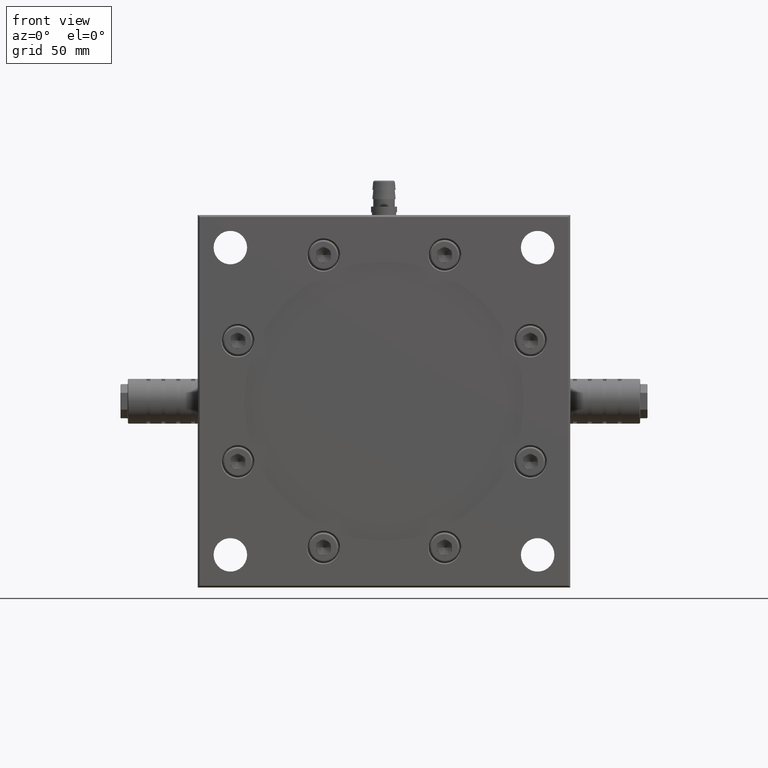
[diagram: clean part render]
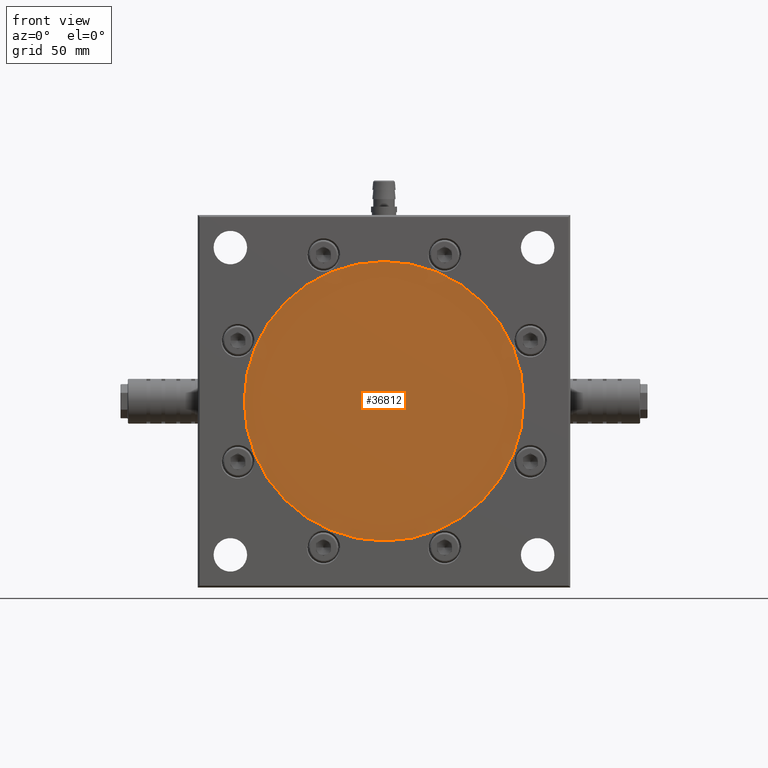
[diagram: same view with one face highlighted and labeled with its STEP entity id]
A machine part, front view. The second image highlights one B-rep face of the part: STEP entity #36812.
In plain terms, the highlighted planar face has unit normal (0, -1, 0).
Its self-contained STEP definition (entity closure, byte-faithful):
#2057 = DIRECTION ( 'NONE',  ( 2.300880297921579900E-017, -1.000000000000000000, 0.0000000000000000000 ) ) ;
#3443 = DIRECTION ( 'NONE',  ( 2.300880297921579900E-017, -1.000000000000000000, 0.0000000000000000000 ) ) ;
#11341 = PLANE ( 'NONE',  #33735 ) ;
#12151 = DIRECTION ( 'NONE',  ( -1.000000000000000000, 0.0000000000000000000, 6.401752586476379100E-022 ) ) ;
#12186 = CARTESIAN_POINT ( 'NONE',  ( -2.300880297921580200E-017, 1.000000000000000000, 0.0000000000000000000 ) ) ;
#12259 = DIRECTION ( 'NONE',  ( -1.000000000000000000, 0.0000000000000000000, 6.401752586476379100E-022 ) ) ;
#14880 = FACE_OUTER_BOUND ( 'NONE', #43205, .T. ) ;
#24697 = AXIS2_PLACEMENT_3D ( 'NONE', #31434, #2057, #12151 ) ;
#29432 = CIRCLE ( 'NONE', #24697, 75.00000000000000000 ) ;
#30041 = VERTEX_POINT ( 'NONE', #55654 ) ;
#31361 = CIRCLE ( 'NONE', #59261, 75.00000000000000000 ) ;
#31434 = CARTESIAN_POINT ( 'NONE',  ( -2.300880297921580200E-017, 1.000000000000000000, 0.0000000000000000000 ) ) ;
#32827 = CARTESIAN_POINT ( 'NONE',  ( -2.300880297921580200E-017, 1.000000000000000000, 0.0000000000000000000 ) ) ;
#33735 = AXIS2_PLACEMENT_3D ( 'NONE', #12186, #36191, #45611 ) ;
#36191 = DIRECTION ( 'NONE',  ( 8.946783215029080500E-019, -1.000000000000000000, 1.415691547251745500E-038 ) ) ;
#36812 = ADVANCED_FACE ( 'NONE', ( #14880 ), #11341, .T. ) ;
#37780 = CARTESIAN_POINT ( 'NONE',  ( -75.00000000000000000, 1.000000000000000000, 4.801314439857284000E-020 ) ) ;
#41882 = VERTEX_POINT ( 'NONE', #37780 ) ;
#43205 = EDGE_LOOP ( 'NONE', ( #46729, #48058 ) ) ;
#45611 = DIRECTION ( 'NONE',  ( -1.000000000000000000, -8.946783215029080500E-019, 6.401752586476379100E-022 ) ) ;
#46729 = ORIENTED_EDGE ( 'NONE', *, *, #51305, .T. ) ;
#47367 = EDGE_CURVE ( 'NONE', #30041, #41882, #29432, .T. ) ;
#48058 = ORIENTED_EDGE ( 'NONE', *, *, #47367, .T. ) ;
#51305 = EDGE_CURVE ( 'NONE', #41882, #30041, #31361, .T. ) ;
#55654 = CARTESIAN_POINT ( 'NONE',  ( 75.00000000000000000, 1.000000000000001800, -9.184899006749547500E-015 ) ) ;
#59261 = AXIS2_PLACEMENT_3D ( 'NONE', #32827, #3443, #12259 ) ;